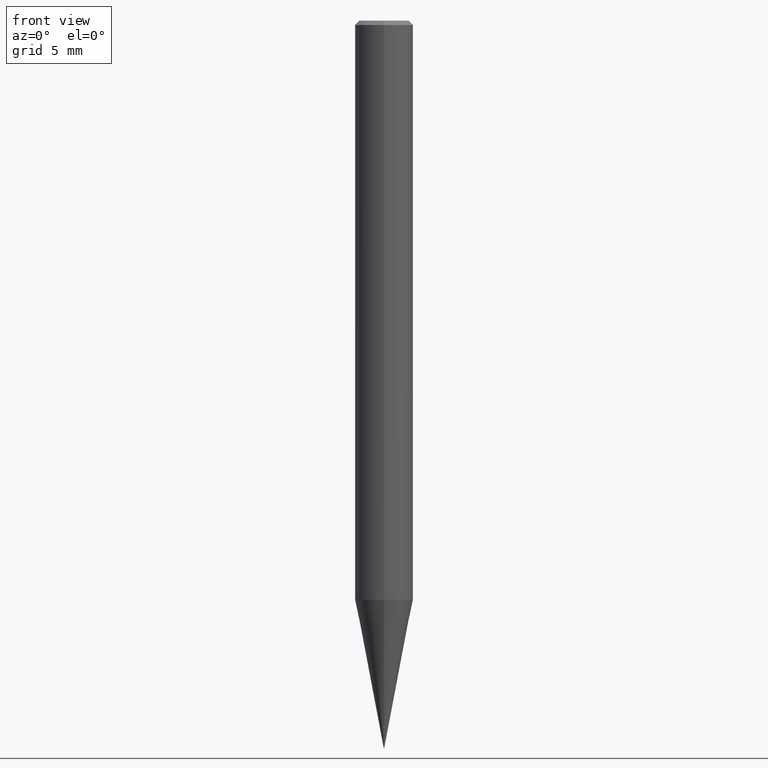
[diagram: clean part render]
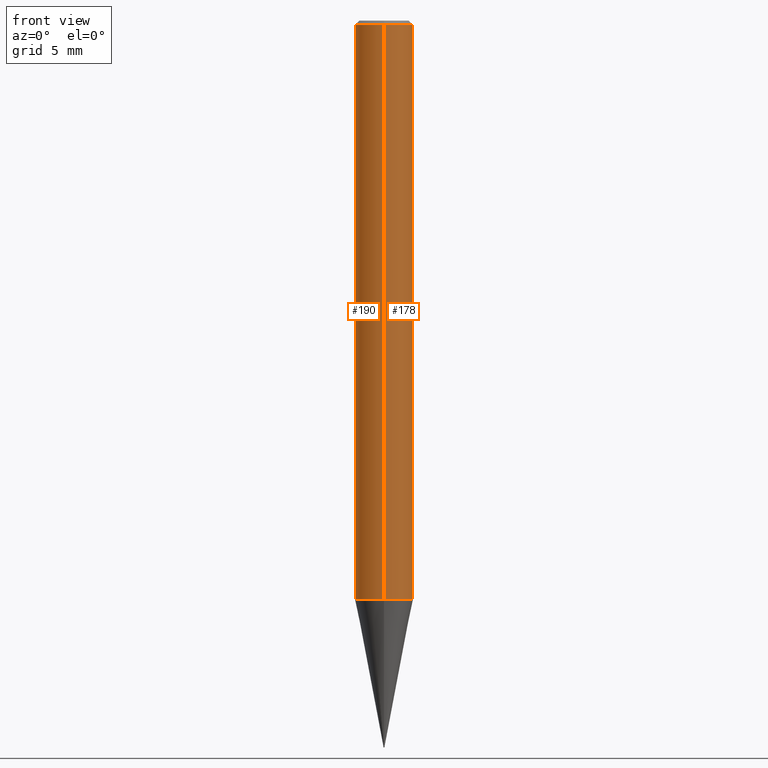
[diagram: same view with one multi-face feature highlighted, each face labeled with its STEP entity id]
A machine part, front view. The highlighted faces form ONE feature: a constant-radius fillet chain: 2 tangent blend faces with common blend radius 2 mm. The faces share edges in the B-rep.
Their STEP definitions:
[1] entity #178 (Cylinder):
#90=VERTEX_POINT('',#215);
#98=EDGE_CURVE('',#90,#146,#223,.T.);
#106=EDGE_CURVE('',#132,#90,#231,.T.);
#132=VERTEX_POINT('',#263);
#146=VERTEX_POINT('',#278);
#154=EDGE_CURVE('',#180,#146,#286,.T.);
#160=EDGE_CURVE('',#180,#132,#292,.T.);
#178=ADVANCED_FACE('',(#315),#316,.T.);
#180=VERTEX_POINT('',#318);
#215=CARTESIAN_POINT('',(2.44921270764475E-016,-2.0,-39.837));
#223=LINE('',#356,#357);
#231=CIRCLE('',#370,2.0);
#263=CARTESIAN_POINT('',(0.0,2.0,-39.837));
#278=CARTESIAN_POINT('',(2.44921270764475E-016,-2.0,-0.299999999999997));
#286=CIRCLE('',#439,2.0);
#292=LINE('',#447,#448);
#315=FACE_OUTER_BOUND('',#473,.T.);
#316=CYLINDRICAL_SURFACE('',#474,2.0);
#318=CARTESIAN_POINT('',(0.0,2.0,-0.299999999999997));
#356=CARTESIAN_POINT('',(2.44921270764475E-016,-2.0,-20.0685));
#357=VECTOR('',#496,1.0);
#370=AXIS2_PLACEMENT_3D('',#504,#505,#506);
#439=AXIS2_PLACEMENT_3D('',#574,#575,#576);
#447=CARTESIAN_POINT('',(-2.44921270764475E-016,2.0,-20.0685));
#448=VECTOR('',#580,1.0);
#473=EDGE_LOOP('',(#618,#619,#620,#621));
#474=AXIS2_PLACEMENT_3D('',#622,#623,#624);
#496=DIRECTION('',(-0.0,-0.0,1.0));
#504=CARTESIAN_POINT('',(0.0,0.0,-39.837));
#505=DIRECTION('',(0.0,0.0,-1.0));
#506=DIRECTION('',(0.0,1.0,0.0));
#574=CARTESIAN_POINT('',(0.0,0.0,-0.299999999999997));
#575=DIRECTION('',(0.0,0.0,-1.0));
#576=DIRECTION('',(0.0,1.0,0.0));
#580=DIRECTION('',(0.0,0.0,-1.0));
#618=ORIENTED_EDGE('',*,*,#160,.F.);
#619=ORIENTED_EDGE('',*,*,#154,.T.);
#620=ORIENTED_EDGE('',*,*,#98,.F.);
#621=ORIENTED_EDGE('',*,*,#106,.F.);
#622=CARTESIAN_POINT('',(0.0,0.0,-20.0685));
#623=DIRECTION('',(-0.0,-0.0,1.0));
#624=DIRECTION('',(0.0,1.0,0.0));
[2] entity #190 (Cylinder):
#90=VERTEX_POINT('',#215);
#98=EDGE_CURVE('',#90,#146,#223,.T.);
#118=EDGE_CURVE('',#90,#132,#245,.T.);
#132=VERTEX_POINT('',#263);
#146=VERTEX_POINT('',#278);
#158=EDGE_CURVE('',#146,#180,#290,.T.);
#160=EDGE_CURVE('',#180,#132,#292,.T.);
#180=VERTEX_POINT('',#318);
#190=ADVANCED_FACE('',(#329),#330,.T.);
#215=CARTESIAN_POINT('',(2.44921270764475E-016,-2.0,-39.837));
#223=LINE('',#356,#357);
#245=CIRCLE('',#390,2.0);
#263=CARTESIAN_POINT('',(0.0,2.0,-39.837));
#278=CARTESIAN_POINT('',(2.44921270764475E-016,-2.0,-0.299999999999997));
#290=CIRCLE('',#444,2.0);
#292=LINE('',#447,#448);
#318=CARTESIAN_POINT('',(0.0,2.0,-0.299999999999997));
#329=FACE_OUTER_BOUND('',#490,.T.);
#330=CYLINDRICAL_SURFACE('',#491,2.0);
#356=CARTESIAN_POINT('',(2.44921270764475E-016,-2.0,-20.0685));
#357=VECTOR('',#496,1.0);
#390=AXIS2_PLACEMENT_3D('',#524,#525,#526);
#444=AXIS2_PLACEMENT_3D('',#577,#578,#579);
#447=CARTESIAN_POINT('',(-2.44921270764475E-016,2.0,-20.0685));
#448=VECTOR('',#580,1.0);
#490=EDGE_LOOP('',(#643,#644,#645,#646));
#491=AXIS2_PLACEMENT_3D('',#647,#648,#649);
#496=DIRECTION('',(-0.0,-0.0,1.0));
#524=CARTESIAN_POINT('',(0.0,0.0,-39.837));
#525=DIRECTION('',(0.0,0.0,-1.0));
#526=DIRECTION('',(0.0,1.0,0.0));
#577=CARTESIAN_POINT('',(0.0,0.0,-0.299999999999997));
#578=DIRECTION('',(0.0,0.0,-1.0));
#579=DIRECTION('',(0.0,1.0,0.0));
#580=DIRECTION('',(0.0,0.0,-1.0));
#643=ORIENTED_EDGE('',*,*,#160,.T.);
#644=ORIENTED_EDGE('',*,*,#118,.F.);
#645=ORIENTED_EDGE('',*,*,#98,.T.);
#646=ORIENTED_EDGE('',*,*,#158,.T.);
#647=CARTESIAN_POINT('',(0.0,0.0,-20.0685));
#648=DIRECTION('',(-0.0,-0.0,1.0));
#649=DIRECTION('',(0.0,1.0,0.0));